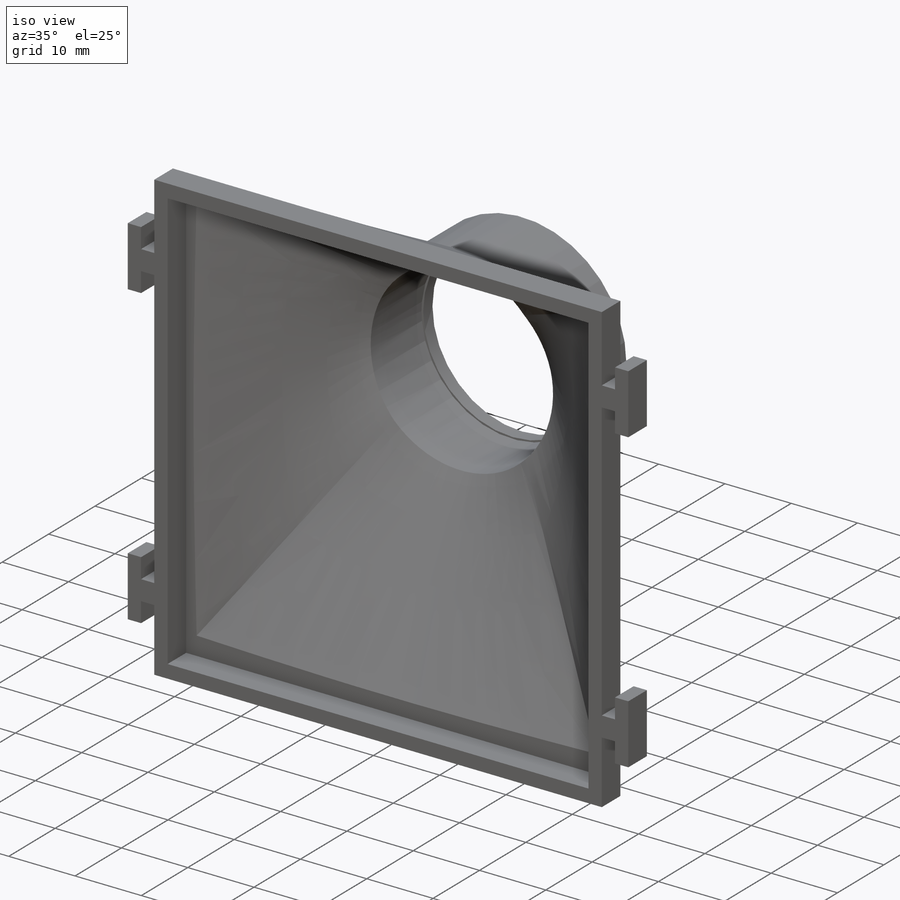
[diagram: iso view]
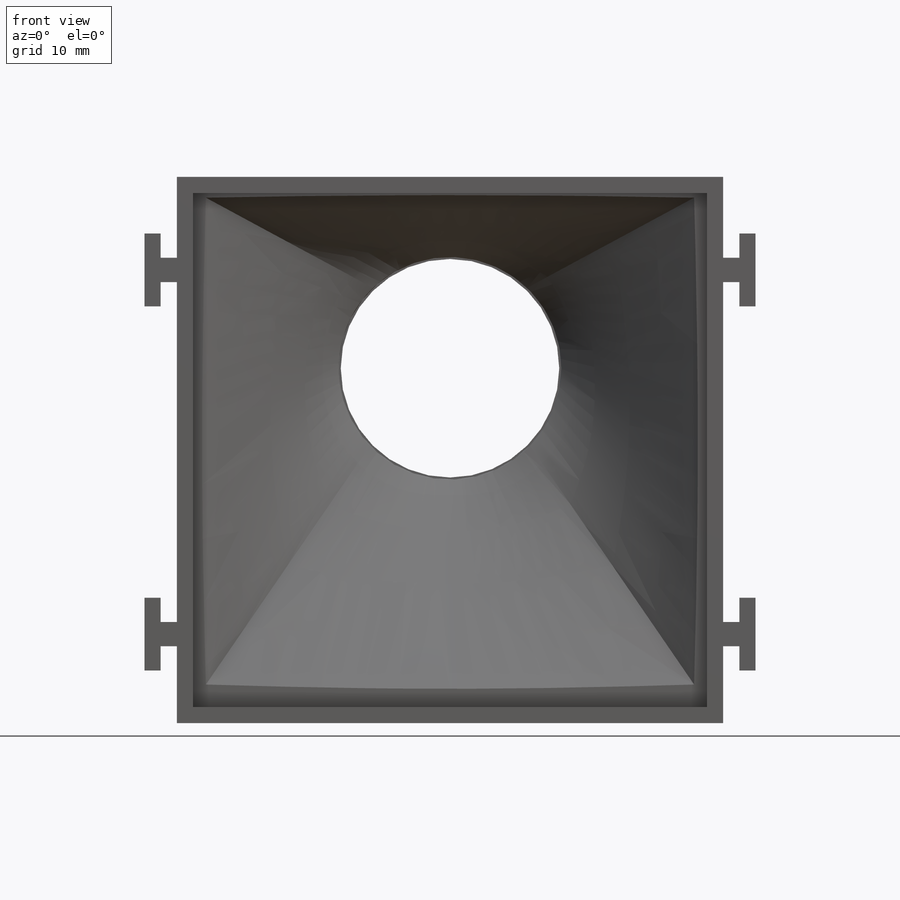
[diagram: front view]
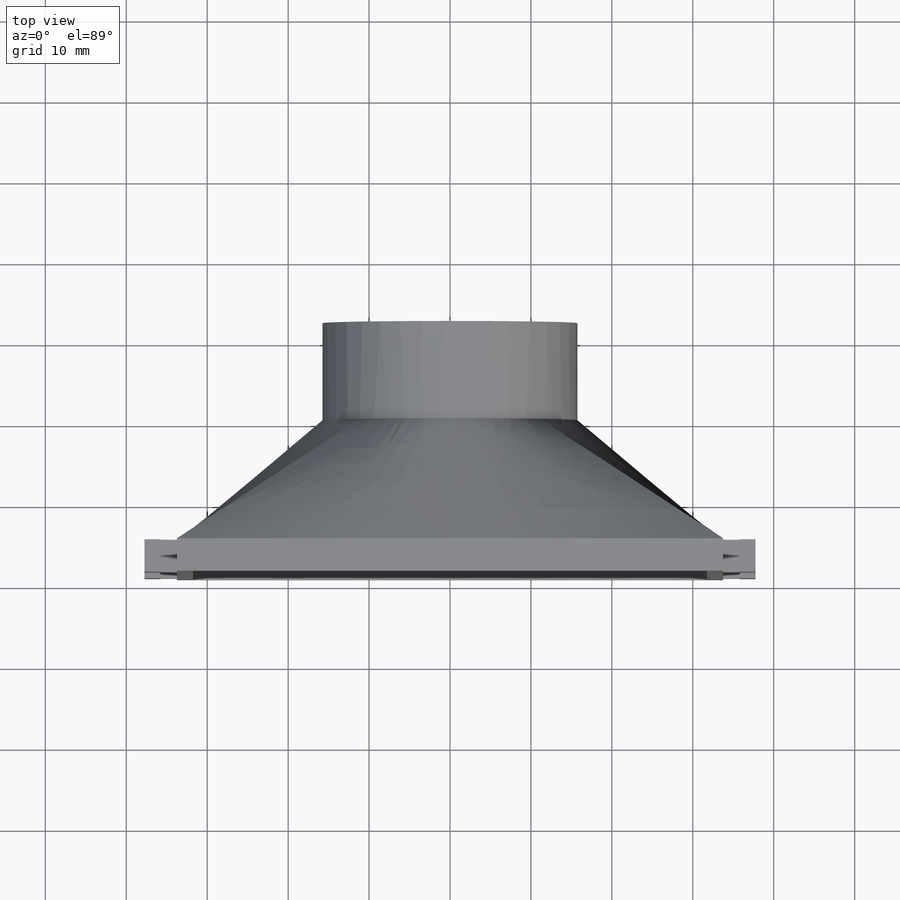
[diagram: top view]
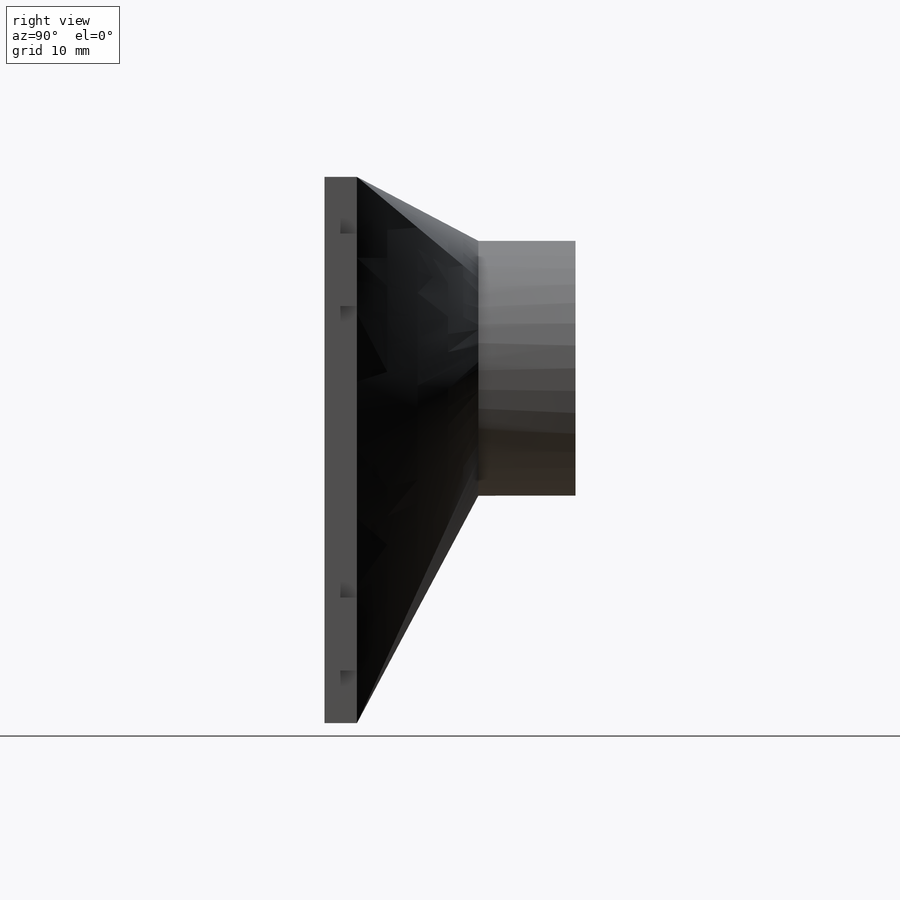
[diagram: right view]
SOLIDWORKS PART (.sldprt)
format: sldprt  version: not decoded by parser v0  size: 584,192 bytes
history: native  units: mm
features: sketch x6, extrude x3, material x1, plane x1, shell x1, cut_extrude x1 (+13 scaffold rows collapsed)
feature tree (26):
  scaffold x13  (default folders/planes/origin — collapsed)
  material  "Material <not specified>"
  plane  "Plane1"  Offset=15mm
  sketch  "Sketch1"  dims[c1.D1=~11.665601mm c1.D5=31.5mm c2.D1=80.2mm c2.D2=80.2mm c2.D3=40.1mm c2.D4=25.0mm]
  sketch  "Sketch2"  dims[c1.D5=31.5mm c1.D1=67.5mm c1.D2=67.5mm c1.D3=40.1mm c1.D4=25.0mm c2.D3=23.65mm c2.D4=33.75mm]
  sketch  "Sketch3"  dims[D1=15.5mm]
  extrude  "Boss-Extrude1"  Depth=12mm
  shell  "Shell1"  Thickness=2mm
  sketch  "Sketch4"  dims[D1=2.0mm]
  extrude  "Boss-Extrude2"  Depth=4mm
  sketch  "Sketch6"  dims[D1=2.0mm D2=2.0mm D3=3.0mm D4=3.0mm D5=3.0mm D6=2.0mm D7=10.0mm D8=2.0]
  extrude  "Boss-Extrude3"  Depth=4mm
  sketch  "Sketch8"  dims[D1=13.3mm]
  cut_extrude  "Cut-Extrude2"  [1 undecoded]
decode coverage: 10 of 11 modeling features carry decoded parameters
note: ~ marks probable driven/reference dimensions
note: 1 parameter value undecoded
note: suppression state not decoded; provenance and decode notes live in map.json
